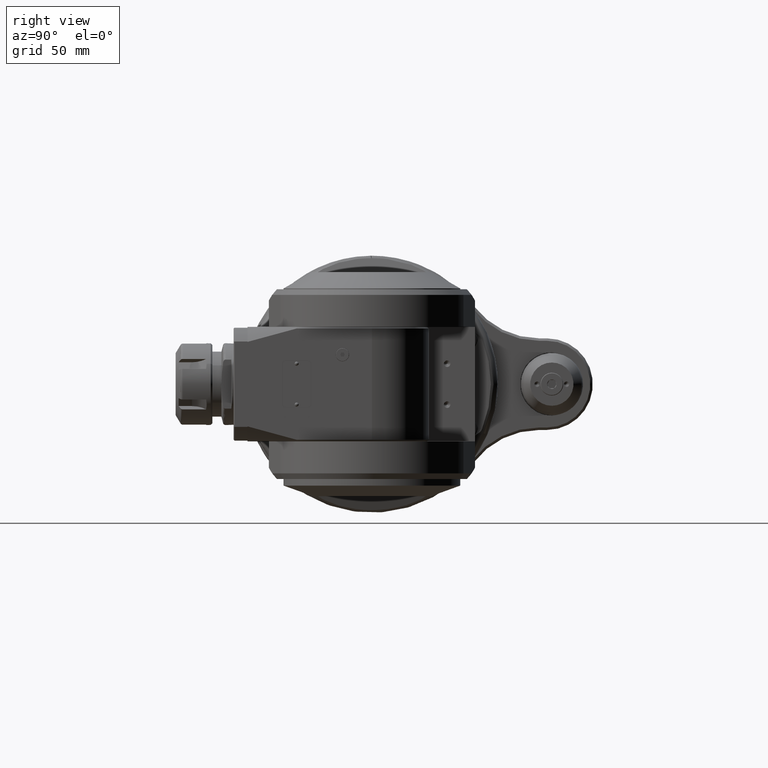
[diagram: clean part render]
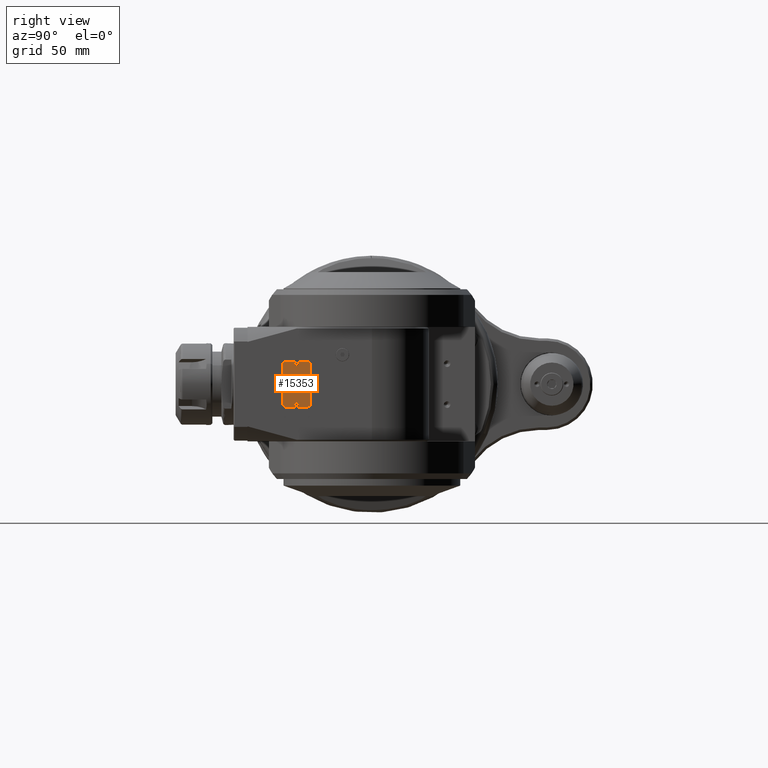
[diagram: same view with one face highlighted and labeled with its STEP entity id]
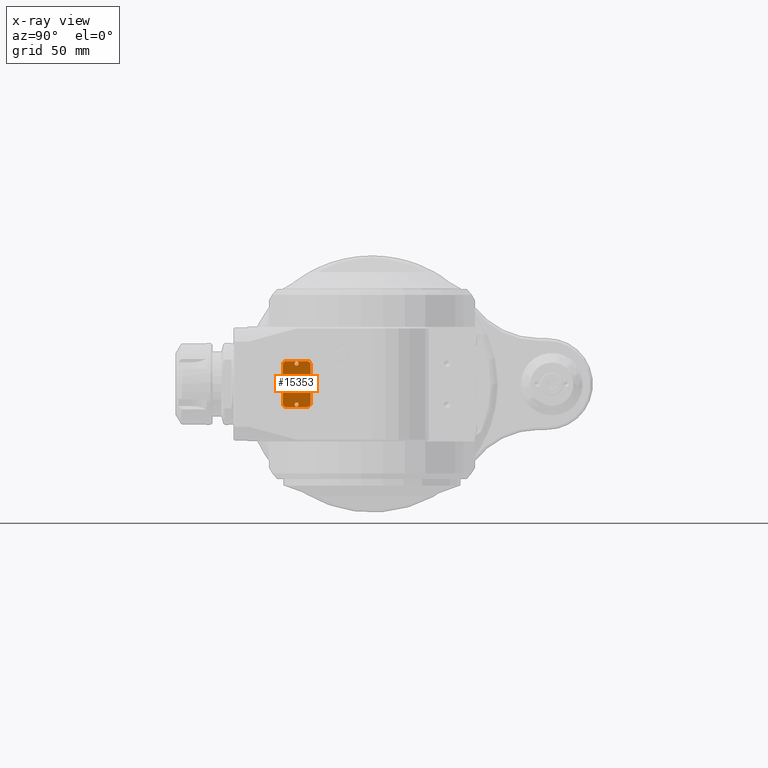
[diagram: x-ray of the same camera — body ghosted, the highlighted face saturated]
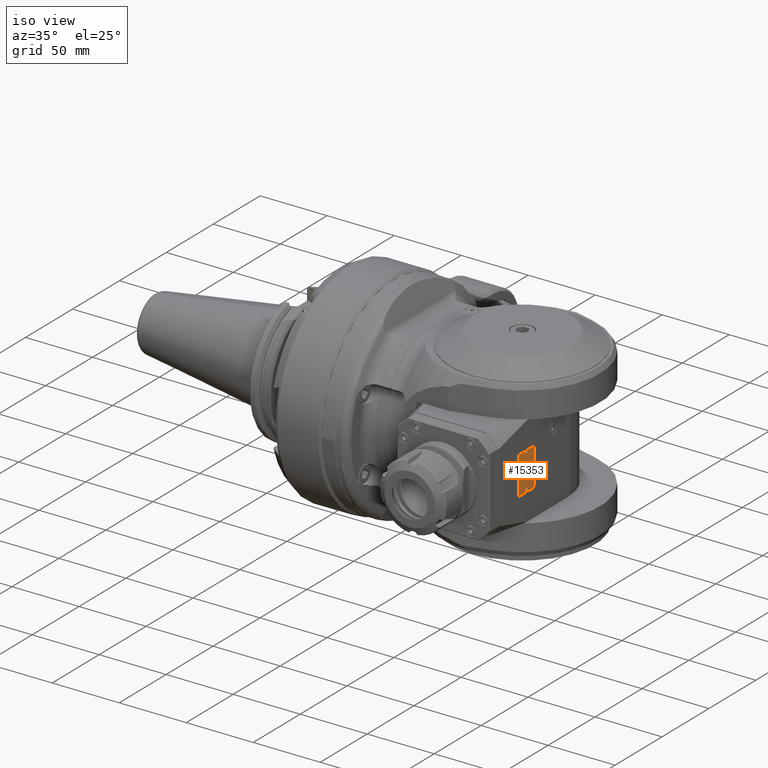
[diagram: same view with one face highlighted and labeled with its STEP entity id]
A machine part, right view. The second image highlights one B-rep face of the part: STEP entity #15353.
The next image is the same camera in x-ray: the body ghosted, the highlighted face saturated — about 0% of this face is hidden behind the body in this view.
A second angle (iso view) of the same face is appended — the face is thin or edge-on in the first view.
In plain terms, the highlighted planar face has unit normal (1, -0, -0).
Its self-contained STEP definition (entity closure, byte-faithful):
#620=FACE_BOUND('',#3120,.T.);
#621=FACE_BOUND('',#3121,.T.);
#1242=PLANE('',#17088);
#2114=FACE_OUTER_BOUND('',#3119,.T.);
#3119=EDGE_LOOP('',(#14073,#14074,#14075,#14076,#14077,#14078,#14079,#14080));
#3120=EDGE_LOOP('',(#14081));
#3121=EDGE_LOOP('',(#14082));
#4155=LINE('',#41485,#5188);
#4158=LINE('',#41491,#5191);
#4159=LINE('',#41495,#5192);
#4160=LINE('',#41499,#5193);
#5188=VECTOR('',#21385,13.);
#5191=VECTOR('',#21390,24.);
#5192=VECTOR('',#21393,13.);
#5193=VECTOR('',#21396,24.);
#5984=CIRCLE('',#17089,2.);
#5985=CIRCLE('',#17090,2.);
#5986=CIRCLE('',#17091,2.);
#5987=CIRCLE('',#17092,2.);
#5988=CIRCLE('',#17093,1.25);
#5989=CIRCLE('',#17094,1.25);
#7431=VERTEX_POINT('',#41483);
#7432=VERTEX_POINT('',#41484);
#7433=VERTEX_POINT('',#41489);
#7434=VERTEX_POINT('',#41490);
#7435=VERTEX_POINT('',#41492);
#7436=VERTEX_POINT('',#41494);
#7437=VERTEX_POINT('',#41496);
#7438=VERTEX_POINT('',#41498);
#7439=VERTEX_POINT('',#41502);
#7440=VERTEX_POINT('',#41504);
#9657=EDGE_CURVE('',#7431,#7432,#4155,.T.);
#9660=EDGE_CURVE('',#7433,#7434,#4158,.T.);
#9661=EDGE_CURVE('',#7434,#7435,#5984,.T.);
#9662=EDGE_CURVE('',#7435,#7436,#4159,.T.);
#9663=EDGE_CURVE('',#7436,#7437,#5985,.T.);
#9664=EDGE_CURVE('',#7437,#7438,#4160,.T.);
#9665=EDGE_CURVE('',#7438,#7431,#5986,.T.);
#9666=EDGE_CURVE('',#7432,#7433,#5987,.T.);
#9667=EDGE_CURVE('',#7439,#7439,#5988,.T.);
#9668=EDGE_CURVE('',#7440,#7440,#5989,.T.);
#14073=ORIENTED_EDGE('',*,*,#9660,.T.);
#14074=ORIENTED_EDGE('',*,*,#9661,.T.);
#14075=ORIENTED_EDGE('',*,*,#9662,.T.);
#14076=ORIENTED_EDGE('',*,*,#9663,.T.);
#14077=ORIENTED_EDGE('',*,*,#9664,.T.);
#14078=ORIENTED_EDGE('',*,*,#9665,.T.);
#14079=ORIENTED_EDGE('',*,*,#9657,.T.);
#14080=ORIENTED_EDGE('',*,*,#9666,.T.);
#14081=ORIENTED_EDGE('',*,*,#9667,.T.);
#14082=ORIENTED_EDGE('',*,*,#9668,.T.);
#15353=ADVANCED_FACE('',(#2114,#620,#621),#1242,.T.);
#17088=AXIS2_PLACEMENT_3D('',#41488,#21388,#21389);
#17089=AXIS2_PLACEMENT_3D('',#41493,#21391,#21392);
#17090=AXIS2_PLACEMENT_3D('',#41497,#21394,#21395);
#17091=AXIS2_PLACEMENT_3D('',#41500,#21397,#21398);
#17092=AXIS2_PLACEMENT_3D('',#41501,#21399,#21400);
#17093=AXIS2_PLACEMENT_3D('',#41503,#21401,#21402);
#17094=AXIS2_PLACEMENT_3D('',#41505,#21403,#21404);
#21385=DIRECTION('',(-1.70803542250024E-16,0.,1.));
#21388=DIRECTION('center_axis',(1.,0.,1.11022302462516E-16));
#21389=DIRECTION('ref_axis',(1.11022302462516E-16,0.,-1.));
#21390=DIRECTION('',(0.,-1.,0.));
#21391=DIRECTION('center_axis',(1.,0.,1.11022302462516E-16));
#21392=DIRECTION('ref_axis',(-1.11022302462516E-16,4.973799150321E-14,1.));
#21393=DIRECTION('',(1.70803542250024E-16,0.,-1.));
#21394=DIRECTION('center_axis',(1.,0.,1.11022302462516E-16));
#21395=DIRECTION('ref_axis',(0.,-1.,0.));
#21396=DIRECTION('',(0.,1.,0.));
#21397=DIRECTION('center_axis',(1.,0.,1.11022302462516E-16));
#21398=DIRECTION('ref_axis',(1.11022302462516E-16,4.618527782441E-14,-1.));
#21399=DIRECTION('center_axis',(1.,0.,1.11022302462516E-16));
#21400=DIRECTION('ref_axis',(0.,1.,0.));
#21401=DIRECTION('center_axis',(-1.,0.,-1.11022302462516E-16));
#21402=DIRECTION('ref_axis',(0.,1.,0.));
#21403=DIRECTION('center_axis',(-1.,0.,-1.11022302462516E-16));
#21404=DIRECTION('ref_axis',(0.,1.,0.));
#41483=CARTESIAN_POINT('',(94.9999999716871,14.,-52.4999999999989));
#41484=CARTESIAN_POINT('',(94.9999999716871,14.,-39.4999999999989));
#41485=CARTESIAN_POINT('',(94.9999999716871,14.,-52.4999999999989));
#41488=CARTESIAN_POINT('Origin',(94.9999999716871,6.44415190767,-40.3369863959988));
#41489=CARTESIAN_POINT('',(94.9999999716871,12.,-37.4999999999988));
#41490=CARTESIAN_POINT('',(94.9999999716871,-12.,-37.4999999999988));
#41491=CARTESIAN_POINT('',(94.9999999716871,12.,-37.4999999999988));
#41492=CARTESIAN_POINT('',(94.9999999716871,-14.,-39.4999999999989));
#41493=CARTESIAN_POINT('Origin',(94.9999999716871,-12.,-39.4999999999989));
#41494=CARTESIAN_POINT('',(94.9999999716871,-14.,-52.4999999999989));
#41495=CARTESIAN_POINT('',(94.9999999716871,-14.,-39.4999999999989));
#41496=CARTESIAN_POINT('',(94.9999999716871,-12.,-54.4999999999989));
#41497=CARTESIAN_POINT('Origin',(94.9999999716871,-12.,-52.4999999999989));
#41498=CARTESIAN_POINT('',(94.9999999716871,12.,-54.4999999999989));
#41499=CARTESIAN_POINT('',(94.9999999716871,-12.,-54.4999999999989));
#41500=CARTESIAN_POINT('Origin',(94.9999999716871,12.,-52.4999999999989));
#41501=CARTESIAN_POINT('Origin',(94.9999999716871,12.,-39.4999999999989));
#41502=CARTESIAN_POINT('',(94.9999999716871,13.75,-45.9999999999989));
#41503=CARTESIAN_POINT('Origin',(94.9999999716871,12.5,-45.9999999999989));
#41504=CARTESIAN_POINT('',(94.9999999716871,-11.25,-45.9999999999989));
#41505=CARTESIAN_POINT('Origin',(94.9999999716871,-12.5,-45.9999999999989));